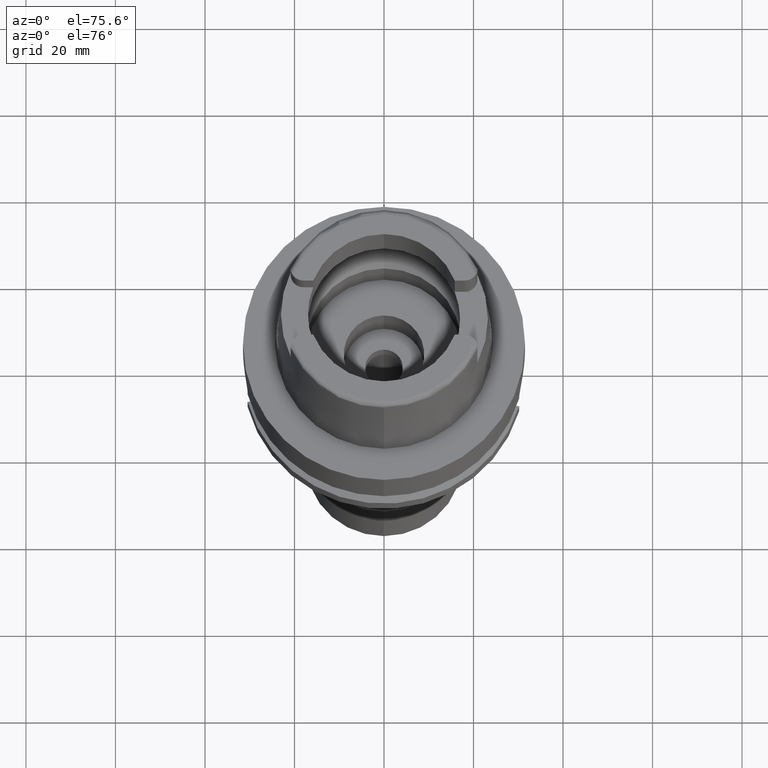
[diagram: clean part render]
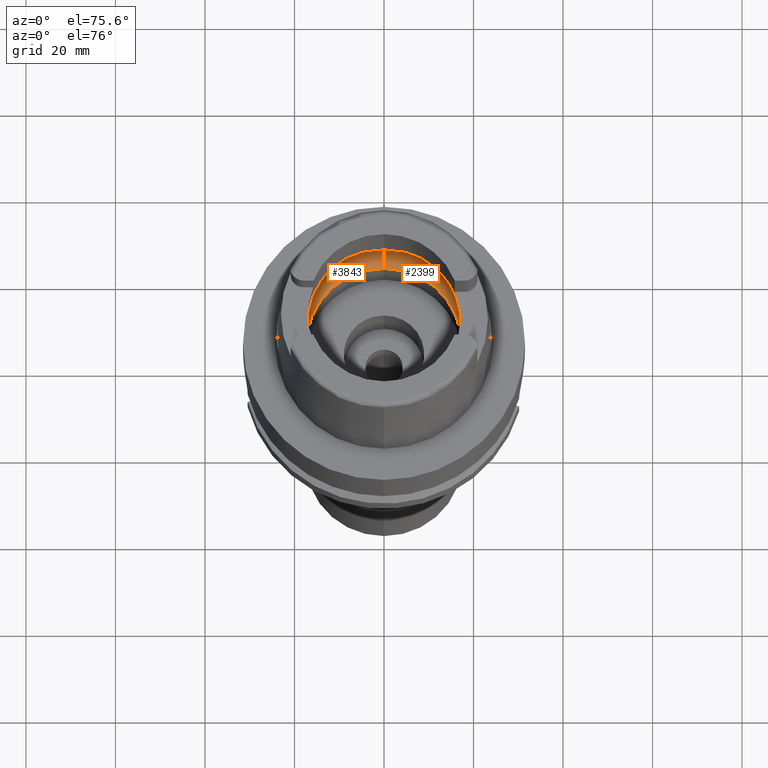
[diagram: same view with one multi-face feature highlighted, each face labeled with its STEP entity id]
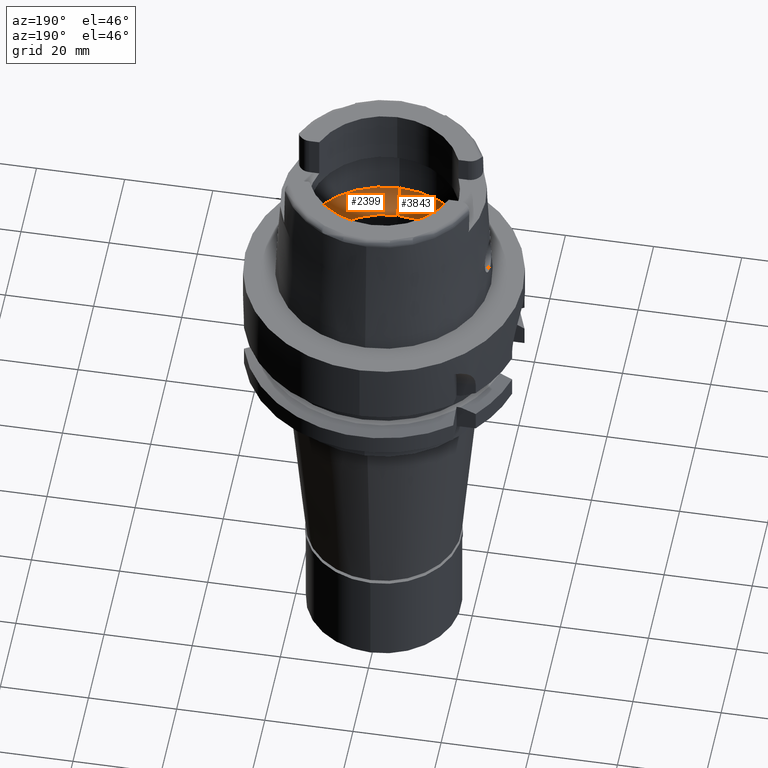
[diagram: same view with one multi-face feature highlighted, each face labeled with its STEP entity id]
A machine part, auxiliary view. The highlighted faces form ONE feature: a constant-radius fillet chain: 2 tangent blend faces with common blend radius 8 mm. The faces share edges in the B-rep.
A second angle (auxiliary view) of the same feature is appended — it is thin or edge-on in the first view.
Their STEP definitions:
[1] entity #3843 (Torus):
#64 = DIRECTION ( 'NONE',  ( 0.0000000000000000000, 0.0000000000000000000, 1.000000000000000000 ) ) ;
#124 = DIRECTION ( 'NONE',  ( 0.0000000000000000000, 1.000000000000000000, 0.0000000000000000000 ) ) ;
#132 = AXIS2_PLACEMENT_3D ( 'NONE', #3434, #5071, #2989 ) ;
#161 = CARTESIAN_POINT ( 'NONE',  ( 0.0000000000000000000, 20.00000000000000000, 6.186348233825000875 ) ) ;
#205 = DIRECTION ( 'NONE',  ( 0.0000000000000000000, 1.000000000000000000, 0.0000000000000000000 ) ) ;
#244 = CARTESIAN_POINT ( 'NONE',  ( -19.92547007504345302, -1.335031240339097369, 5.495683724100088874 ) ) ;
#247 = ORIENTED_EDGE ( 'NONE', *, *, #4760, .F. ) ;
#299 = CARTESIAN_POINT ( 'NONE',  ( -19.93292508344945801, 1.081630659659294169, 5.408972087979956989 ) ) ;
#324 = CARTESIAN_POINT ( 'NONE',  ( -19.94501428475999916, 0.0000000000000000000, 5.250000000000000000 ) ) ;
#379 = CARTESIAN_POINT ( 'NONE',  ( -19.92607296192538513, 1.317057065037986030, 5.488888788417265907 ) ) ;
#411 = CIRCLE ( 'NONE', #4923, 17.25000000000000000 ) ;
#430 = AXIS2_PLACEMENT_3D ( 'NONE', #5112, #988, #2607 ) ;
#463 = EDGE_CURVE ( 'NONE', #1445, #4021, #3325, .T. ) ;
#660 = CARTESIAN_POINT ( 'NONE',  ( -19.92517785718085577, -1.343613127942956842, 5.498962406970089312 ) ) ;
#713 = CARTESIAN_POINT ( 'NONE',  ( -19.92467615132159864, -1.358120919786871328, 5.504564686247708671 ) ) ;
#748 = CARTESIAN_POINT ( 'NONE',  ( -19.94501428476000271, 0.2480002814738951344, 5.249999999999999112 ) ) ;
#776 = CARTESIAN_POINT ( 'NONE',  ( -19.88332310116147283, 2.178371483505385786, 5.921391814315846602 ) ) ;
#876 = CARTESIAN_POINT ( 'NONE',  ( -19.90654447560747542, -1.770008974173177263, 5.691881888190377659 ) ) ;
#988 = DIRECTION ( 'NONE',  ( 1.000000000000000000, 0.0000000000000000000, 0.0000000000000000000 ) ) ;
#1007 = DIRECTION ( 'NONE',  ( -1.000000000000000000, 0.0000000000000000000, 0.0000000000000000000 ) ) ;
#1057 = AXIS2_PLACEMENT_3D ( 'NONE', #4822, #1007, #2270 ) ;
#1101 = CARTESIAN_POINT ( 'NONE',  ( -19.94501428475999560, -0.4960423020627297008, 5.249999999999995559 ) ) ;
#1183 = CARTESIAN_POINT ( 'NONE',  ( -19.92705993187612989, 1.286922590644232978, 5.477696685208107930 ) ) ;
#1212 = CARTESIAN_POINT ( 'NONE',  ( -19.93096058823649130, 1.157935579649966629, 5.432577573767241041 ) ) ;
#1282 = CARTESIAN_POINT ( 'NONE',  ( -19.84575864665999845, -2.479085262491000030, 6.186348233825000875 ) ) ;
#1387 = CARTESIAN_POINT ( 'NONE',  ( 0.0000000000000000000, 0.0000000000000000000, 6.186348233825000875 ) ) ;
#1445 = VERTEX_POINT ( 'NONE', #3840 ) ;
#1537 = VERTEX_POINT ( 'NONE', #2818 ) ;
#1570 = CARTESIAN_POINT ( 'NONE',  ( -19.94340239125193293, 0.4850157974226460000, 5.274610163457148282 ) ) ;
#1596 = CARTESIAN_POINT ( 'NONE',  ( -19.90996073982917380, 1.795817278995830657, 5.670328124222732136 ) ) ;
#1649 = CARTESIAN_POINT ( 'NONE',  ( -19.92591704426989452, 1.321751840890049490, 5.490650643677390974 ) ) ;
#1802 = VERTEX_POINT ( 'NONE', #2412 ) ;
#1874 = CARTESIAN_POINT ( 'NONE',  ( -19.93856671042052398, -0.9459665778997381480, 5.348222674928019060 ) ) ;
#1999 = ORIENTED_EDGE ( 'NONE', *, *, #3637, .F. ) ;
#2098 = CARTESIAN_POINT ( 'NONE',  ( 0.0000000000000000000, -17.25000000000000000, 0.1500000000000999700 ) ) ;
#2107 = CIRCLE ( 'NONE', #430, 7.999999999999992895 ) ;
#2114 = ORIENTED_EDGE ( 'NONE', *, *, #4598, .T. ) ;
#2144 = CARTESIAN_POINT ( 'NONE',  ( -19.90056784349247820, -1.871074272730828048, 5.748194928871746434 ) ) ;
#2270 = DIRECTION ( 'NONE',  ( 0.0000000000000000000, -0.6562500000000006661, -0.7545435292281016393 ) ) ;
#2355 = CARTESIAN_POINT ( 'NONE',  ( -19.91448525756728927, -1.610510976265786987, 5.612925495665686881 ) ) ;
#2383 = CARTESIAN_POINT ( 'NONE',  ( -19.84575864665999845, 2.479085262489999941, 6.186348233825000875 ) ) ;
#2412 = CARTESIAN_POINT ( 'NONE',  ( 0.0000000000000000000, 17.25000000000000000, 0.1500000000000999700 ) ) ;
#2499 = CIRCLE ( 'NONE', #132, 20.00000000000000000 ) ;
#2598 = CARTESIAN_POINT ( 'NONE',  ( 0.0000000000000000000, -20.00000000000000000, 6.186348233825000875 ) ) ;
#2607 = DIRECTION ( 'NONE',  ( 0.0000000000000000000, 0.6562500000000006661, -0.7545435292281016393 ) ) ;
#2676 = EDGE_CURVE ( 'NONE', #3620, #1537, #2499, .T. ) ;
#2731 = CIRCLE ( 'NONE', #1057, 7.999999999999992895 ) ;
#2745 = DIRECTION ( 'NONE',  ( -0.9922879323327794543, 0.1239542631244973381, 0.0000000000000000000 ) ) ;
#2763 = EDGE_LOOP ( 'NONE', ( #4072, #3680, #1999, #2114, #3548, #4168, #247 ) ) ;
#2816 = CARTESIAN_POINT ( 'NONE',  ( -19.93655184384261858, 0.9261166967963114782, 5.364558725656097593 ) ) ;
#2818 = CARTESIAN_POINT ( 'NONE',  ( -19.84575864665999845, -2.479085262491000030, 6.186348233825000875 ) ) ;
#2872 = CARTESIAN_POINT ( 'NONE',  ( -19.92840422587602944, 1.244362650384072122, 5.462311864171463860 ) ) ;
#2971 = CARTESIAN_POINT ( 'NONE',  ( -19.86453968564131500, -2.328737885376345407, 6.053878405347992597 ) ) ;
#2989 = DIRECTION ( 'NONE',  ( 0.0000000000000000000, -1.000000000000000000, 0.0000000000000000000 ) ) ;
#3015 = CARTESIAN_POINT ( 'NONE',  ( 0.0000000000000000000, 0.0000000000000000000, 0.1500000000000999700 ) ) ;
#3074 = DIRECTION ( 'NONE',  ( 0.0000000000000000000, 0.0000000000000000000, 1.000000000000000000 ) ) ;
#3325 = B_SPLINE_CURVE_WITH_KNOTS ( 'NONE', 3,
 ( #324, #748, #1570, #3679, #2816, #299, #1212, #2872, #1183, #4563, #379, #1649, #1596, #776, #2383 ),
 .UNSPECIFIED., .F., .F.,
 ( 4, 2, 2, 1, 1, 1, 2, 2, 4 ),
 ( 0.0000000000000000000, 0.2499999999999956146, 0.3749999999999934497, 0.4374999999999923395, 0.4687499999999917288, 0.4843749999999914513, 0.4921874999999914513, 0.4999999999999915623, 1.000000000000000000 ),
 .UNSPECIFIED. ) ;
#3419 = AXIS2_PLACEMENT_3D ( 'NONE', #3951, #3572, #2745 ) ;
#3434 = CARTESIAN_POINT ( 'NONE',  ( 0.0000000000000000000, 0.0000000000000000000, 6.186348233825000875 ) ) ;
#3548 = ORIENTED_EDGE ( 'NONE', *, *, #4201, .F. ) ;
#3559 = CARTESIAN_POINT ( 'NONE',  ( -19.94501428475999916, 0.0000000000000000000, 5.250000000000000000 ) ) ;
#3572 = DIRECTION ( 'NONE',  ( 0.0000000000000000000, 0.0000000000000000000, -1.000000000000000000 ) ) ;
#3620 = VERTEX_POINT ( 'NONE', #2598 ) ;
#3637 = EDGE_CURVE ( 'NONE', #1802, #5258, #411, .T. ) ;
#3679 = CARTESIAN_POINT ( 'NONE',  ( -19.93856671072771292, 0.8185607198028845843, 5.338678409714962214 ) ) ;
#3680 = ORIENTED_EDGE ( 'NONE', *, *, #5218, .F. ) ;
#3840 = CARTESIAN_POINT ( 'NONE',  ( -19.94501428475999916, 0.0000000000000000000, 5.250000000000000000 ) ) ;
#3843 = ADVANCED_FACE ( 'NONE', ( #4042 ), #5007, .F. ) ;
#3951 = CARTESIAN_POINT ( 'NONE',  ( 0.0000000000000000000, 0.0000000000000000000, 6.186348233825000875 ) ) ;
#4021 = VERTEX_POINT ( 'NONE', #4572 ) ;
#4024 = CARTESIAN_POINT ( 'NONE',  ( -19.92208494194046509, -1.430041077684033990, 5.533135808937241329 ) ) ;
#4042 = FACE_OUTER_BOUND ( 'NONE', #2763, .T. ) ;
#4072 = ORIENTED_EDGE ( 'NONE', *, *, #2676, .F. ) ;
#4168 = ORIENTED_EDGE ( 'NONE', *, *, #463, .F. ) ;
#4201 = EDGE_CURVE ( 'NONE', #4021, #4602, #4753, .T. ) ;
#4563 = CARTESIAN_POINT ( 'NONE',  ( -19.92646963884338263, 1.305022040076338818, 5.484397814373272340 ) ) ;
#4572 = CARTESIAN_POINT ( 'NONE',  ( -19.84575864665999845, 2.479085262489999941, 6.186348233825000875 ) ) ;
#4598 = EDGE_CURVE ( 'NONE', #1802, #4602, #2107, .T. ) ;
#4602 = VERTEX_POINT ( 'NONE', #161 ) ;
#4670 = CARTESIAN_POINT ( 'NONE',  ( -19.88058961472209774, -2.158414018199903417, 5.925204145833316893 ) ) ;
#4675 = B_SPLINE_CURVE_WITH_KNOTS ( 'NONE', 3,
 ( #1282, #2971, #4670, #2144, #876, #2355, #5254, #4024, #4910, #713, #660, #244, #1874, #1101, #3559 ),
 .UNSPECIFIED., .F., .F.,
 ( 4, 2, 2, 1, 1, 1, 2, 2, 4 ),
 ( 0.0000000000000000000, 0.2500000000000051070, 0.3750000000000077716, 0.4375000000000091038, 0.4687500000000098255, 0.4843750000000101030, 0.4921875000000099920, 0.5000000000000098810, 1.000000000000000000 ),
 .UNSPECIFIED. ) ;
#4753 = CIRCLE ( 'NONE', #3419, 20.00000000000001421 ) ;
#4760 = EDGE_CURVE ( 'NONE', #1537, #1445, #4675, .T. ) ;
#4822 = CARTESIAN_POINT ( 'NONE',  ( 0.0000000000000000000, -12.00000000000000000, 6.186348233825000875 ) ) ;
#4910 = CARTESIAN_POINT ( 'NONE',  ( -19.92391559123418787, -1.379822842001579009, 5.513022806674898746 ) ) ;
#4923 = AXIS2_PLACEMENT_3D ( 'NONE', #3015, #64, #124 ) ;
#5007 = TOROIDAL_SURFACE ( 'NONE', #5102, 12.00000000000000000, 8.000000000000000000 ) ;
#5071 = DIRECTION ( 'NONE',  ( 0.0000000000000000000, 0.0000000000000000000, -1.000000000000000000 ) ) ;
#5102 = AXIS2_PLACEMENT_3D ( 'NONE', #1387, #3074, #205 ) ;
#5112 = CARTESIAN_POINT ( 'NONE',  ( 0.0000000000000000000, 12.00000000000000000, 6.186348233825000875 ) ) ;
#5218 = EDGE_CURVE ( 'NONE', #5258, #3620, #2731, .T. ) ;
#5254 = CARTESIAN_POINT ( 'NONE',  ( -19.91819960699401193, -1.528790138807751164, 5.574827418276589341 ) ) ;
#5258 = VERTEX_POINT ( 'NONE', #2098 ) ;
[2] entity #2399 (Torus):
#136 = CARTESIAN_POINT ( 'NONE',  ( 19.92840411800285594, -1.244366584479167814, 5.462313247185328180 ) ) ;
#161 = CARTESIAN_POINT ( 'NONE',  ( 0.0000000000000000000, 20.00000000000000000, 6.186348233825000875 ) ) ;
#195 = CARTESIAN_POINT ( 'NONE',  ( 19.90654459260023401, 1.770006697072565638, 5.691880654306289422 ) ) ;
#216 = DIRECTION ( 'NONE',  ( 0.9922879323327794543, -0.1239542631244973381, 0.0000000000000000000 ) ) ;
#246 = CARTESIAN_POINT ( 'NONE',  ( 19.84575864665999845, -2.479085262491000030, 6.186348233825000875 ) ) ;
#352 = CIRCLE ( 'NONE', #623, 20.00000000000000000 ) ;
#430 = AXIS2_PLACEMENT_3D ( 'NONE', #5112, #988, #2607 ) ;
#525 = CARTESIAN_POINT ( 'NONE',  ( 19.90056795285840252, 1.871072381427654641, 5.748193827892907670 ) ) ;
#623 = AXIS2_PLACEMENT_3D ( 'NONE', #1534, #4423, #4392 ) ;
#640 = CARTESIAN_POINT ( 'NONE',  ( 19.92547020324161622, 1.335027099705274445, 5.495682146681705404 ) ) ;
#663 = CARTESIAN_POINT ( 'NONE',  ( 19.88332301270218849, -2.178372191595286722, 5.921392438207989883 ) ) ;
#741 = EDGE_CURVE ( 'NONE', #3143, #3620, #2507, .T. ) ;
#753 = CIRCLE ( 'NONE', #3829, 17.25000000000000000 ) ;
#778 = CARTESIAN_POINT ( 'NONE',  ( 0.0000000000000000000, 0.0000000000000000000, 0.1500000000000999700 ) ) ;
#802 = EDGE_CURVE ( 'NONE', #1279, #3143, #5379, .T. ) ;
#872 = DIRECTION ( 'NONE',  ( 0.0000000000000000000, 0.0000000000000000000, 1.000000000000000000 ) ) ;
#928 = VERTEX_POINT ( 'NONE', #2378 ) ;
#929 = DIRECTION ( 'NONE',  ( 0.0000000000000000000, 1.000000000000000000, 0.0000000000000000000 ) ) ;
#940 = CARTESIAN_POINT ( 'NONE',  ( 19.92517798419736508, 1.343609062691706768, 5.498960846759680443 ) ) ;
#988 = DIRECTION ( 'NONE',  ( 1.000000000000000000, 0.0000000000000000000, 0.0000000000000000000 ) ) ;
#1007 = DIRECTION ( 'NONE',  ( -1.000000000000000000, 0.0000000000000000000, 0.0000000000000000000 ) ) ;
#1020 = CARTESIAN_POINT ( 'NONE',  ( 19.90996060949646207, -1.795819319521763990, 5.670329520825307057 ) ) ;
#1057 = AXIS2_PLACEMENT_3D ( 'NONE', #4822, #1007, #2270 ) ;
#1253 = CARTESIAN_POINT ( 'NONE',  ( 0.0000000000000000000, 0.0000000000000000000, 6.186348233825000875 ) ) ;
#1279 = VERTEX_POINT ( 'NONE', #2774 ) ;
#1425 = CARTESIAN_POINT ( 'NONE',  ( 19.92705981527248937, -1.286926606873724177, 5.477698152406411225 ) ) ;
#1430 = CARTESIAN_POINT ( 'NONE',  ( 19.92391571847978327, 1.379818936262329210, 5.513021260670505796 ) ) ;
#1486 = CARTESIAN_POINT ( 'NONE',  ( 19.94340238078356720, -0.4850176595367738930, 5.274610361541468784 ) ) ;
#1487 = ORIENTED_EDGE ( 'NONE', *, *, #802, .F. ) ;
#1529 = EDGE_LOOP ( 'NONE', ( #2213, #1659, #3134, #1755, #4359, #2219, #1487 ) ) ;
#1534 = CARTESIAN_POINT ( 'NONE',  ( 0.0000000000000000000, 0.0000000000000000000, 6.186348233825000875 ) ) ;
#1659 = ORIENTED_EDGE ( 'NONE', *, *, #4834, .F. ) ;
#1679 = DIRECTION ( 'NONE',  ( 0.0000000000000000000, -1.000000000000000000, 0.0000000000000000000 ) ) ;
#1754 = EDGE_CURVE ( 'NONE', #5258, #1802, #753, .T. ) ;
#1755 = ORIENTED_EDGE ( 'NONE', *, *, #1754, .F. ) ;
#1802 = VERTEX_POINT ( 'NONE', #2412 ) ;
#1827 = B_SPLINE_CURVE_WITH_KNOTS ( 'NONE', 3,
 ( #4433, #4788, #3567, #525, #195, #4401, #5232, #5261, #1430, #2287, #940, #640, #2673, #2615, #2315 ),
 .UNSPECIFIED., .F., .F.,
 ( 4, 2, 2, 1, 1, 1, 2, 2, 4 ),
 ( 0.0000000000000000000, 0.2500000000000098810, 0.3750000000000143774, 0.4375000000000168199, 0.4687500000000177636, 0.4843750000000178746, 0.4921875000000178191, 0.5000000000000177636, 1.000000000000000000 ),
 .UNSPECIFIED. ) ;
#2098 = CARTESIAN_POINT ( 'NONE',  ( 0.0000000000000000000, -17.25000000000000000, 0.1500000000000999700 ) ) ;
#2107 = CIRCLE ( 'NONE', #430, 7.999999999999992895 ) ;
#2152 = TOROIDAL_SURFACE ( 'NONE', #2330, 12.00000000000000000, 8.000000000000000000 ) ;
#2213 = ORIENTED_EDGE ( 'NONE', *, *, #5477, .F. ) ;
#2219 = ORIENTED_EDGE ( 'NONE', *, *, #741, .F. ) ;
#2224 = CARTESIAN_POINT ( 'NONE',  ( 19.93655178888372248, -0.9261198900591437466, 5.364559530321087344 ) ) ;
#2270 = DIRECTION ( 'NONE',  ( 0.0000000000000000000, -0.6562500000000006661, -0.7545435292281016393 ) ) ;
#2287 = CARTESIAN_POINT ( 'NONE',  ( 19.92467627844355249, 1.358116918539703288, 5.504563131532022702 ) ) ;
#2310 = CARTESIAN_POINT ( 'NONE',  ( 19.94501428475999916, 0.0000000000000000000, 5.250000000000000000 ) ) ;
#2315 = CARTESIAN_POINT ( 'NONE',  ( 19.94501428475999916, 0.0000000000000000000, 5.250000000000000000 ) ) ;
#2330 = AXIS2_PLACEMENT_3D ( 'NONE', #1253, #872, #929 ) ;
#2378 = CARTESIAN_POINT ( 'NONE',  ( 19.84575864665999845, 2.479085262491000030, 6.186348233825000875 ) ) ;
#2399 = ADVANCED_FACE ( 'NONE', ( #2522 ), #2152, .F. ) ;
#2412 = CARTESIAN_POINT ( 'NONE',  ( 0.0000000000000000000, 17.25000000000000000, 0.1500000000000999700 ) ) ;
#2438 = DIRECTION ( 'NONE',  ( 0.0000000000000000000, 0.0000000000000000000, 1.000000000000000000 ) ) ;
#2507 = CIRCLE ( 'NONE', #3931, 20.00000000000001421 ) ;
#2522 = FACE_OUTER_BOUND ( 'NONE', #1529, .T. ) ;
#2598 = CARTESIAN_POINT ( 'NONE',  ( 0.0000000000000000000, -20.00000000000000000, 6.186348233825000875 ) ) ;
#2607 = DIRECTION ( 'NONE',  ( 0.0000000000000000000, 0.6562500000000006661, -0.7545435292281016393 ) ) ;
#2615 = CARTESIAN_POINT ( 'NONE',  ( 19.94501428475999916, 0.4960402853743813290, 5.250000000000000888 ) ) ;
#2673 = CARTESIAN_POINT ( 'NONE',  ( 19.93856675271270618, 0.9459631445367676639, 5.348221889603026469 ) ) ;
#2731 = CIRCLE ( 'NONE', #1057, 7.999999999999992895 ) ;
#2766 = CARTESIAN_POINT ( 'NONE',  ( 19.84575864665999845, -2.479085262491000030, 6.186348233825000875 ) ) ;
#2774 = CARTESIAN_POINT ( 'NONE',  ( 19.94501428475999916, 0.0000000000000000000, 5.250000000000000000 ) ) ;
#3085 = CARTESIAN_POINT ( 'NONE',  ( 19.93292500493674524, -1.081634238850528451, 5.408973163817647034 ) ) ;
#3114 = CARTESIAN_POINT ( 'NONE',  ( 19.92591691872320681, -1.321755966737424792, 5.490652197696729075 ) ) ;
#3134 = ORIENTED_EDGE ( 'NONE', *, *, #4598, .F. ) ;
#3143 = VERTEX_POINT ( 'NONE', #2766 ) ;
#3535 = CARTESIAN_POINT ( 'NONE',  ( 19.93856666885426776, -0.8185636124059638696, 5.338679045133562617 ) ) ;
#3567 = CARTESIAN_POINT ( 'NONE',  ( 19.88058969236887918, 2.158413152842832083, 5.925203484518751118 ) ) ;
#3620 = VERTEX_POINT ( 'NONE', #2598 ) ;
#3829 = AXIS2_PLACEMENT_3D ( 'NONE', #778, #2438, #1679 ) ;
#3931 = AXIS2_PLACEMENT_3D ( 'NONE', #5197, #4864, #216 ) ;
#4026 = CARTESIAN_POINT ( 'NONE',  ( 19.94501428476000271, -0.2480012822880987844, 5.249999999999999112 ) ) ;
#4359 = ORIENTED_EDGE ( 'NONE', *, *, #5218, .T. ) ;
#4392 = DIRECTION ( 'NONE',  ( 0.0000000000000000000, 1.000000000000000000, 0.0000000000000000000 ) ) ;
#4401 = CARTESIAN_POINT ( 'NONE',  ( 19.91448538158095616, 1.610508053762637504, 5.612924102263966653 ) ) ;
#4423 = DIRECTION ( 'NONE',  ( 0.0000000000000000000, 0.0000000000000000000, -1.000000000000000000 ) ) ;
#4433 = CARTESIAN_POINT ( 'NONE',  ( 19.84575864665999845, 2.479085262491000030, 6.186348233825000875 ) ) ;
#4598 = EDGE_CURVE ( 'NONE', #1802, #4602, #2107, .T. ) ;
#4602 = VERTEX_POINT ( 'NONE', #161 ) ;
#4783 = CARTESIAN_POINT ( 'NONE',  ( 19.92646951840612246, -1.305026090026948804, 5.484399317726082579 ) ) ;
#4788 = CARTESIAN_POINT ( 'NONE',  ( 19.86453973035713005, 2.328737527431126608, 6.053878089965426312 ) ) ;
#4822 = CARTESIAN_POINT ( 'NONE',  ( 0.0000000000000000000, -12.00000000000000000, 6.186348233825000875 ) ) ;
#4834 = EDGE_CURVE ( 'NONE', #4602, #928, #352, .T. ) ;
#4864 = DIRECTION ( 'NONE',  ( 0.0000000000000000000, 0.0000000000000000000, -1.000000000000000000 ) ) ;
#5112 = CARTESIAN_POINT ( 'NONE',  ( 0.0000000000000000000, 12.00000000000000000, 6.186348233825000875 ) ) ;
#5197 = CARTESIAN_POINT ( 'NONE',  ( 0.0000000000000000000, 0.0000000000000000000, 6.186348233825000875 ) ) ;
#5218 = EDGE_CURVE ( 'NONE', #5258, #3620, #2731, .T. ) ;
#5227 = CARTESIAN_POINT ( 'NONE',  ( 19.93096049696546856, -1.157939335591919860, 5.432578789541300246 ) ) ;
#5232 = CARTESIAN_POINT ( 'NONE',  ( 19.91819973341328875, 1.528786876979157716, 5.574825955112756581 ) ) ;
#5258 = VERTEX_POINT ( 'NONE', #2098 ) ;
#5261 = CARTESIAN_POINT ( 'NONE',  ( 19.92208506923287104, 1.430037391292800830, 5.533134286468000873 ) ) ;
#5287 = CARTESIAN_POINT ( 'NONE',  ( 19.92607283891191727, -1.317061137141596561, 5.488890315884850324 ) ) ;
#5379 = B_SPLINE_CURVE_WITH_KNOTS ( 'NONE', 3,
 ( #2310, #4026, #1486, #3535, #2224, #3085, #5227, #136, #1425, #4783, #5287, #3114, #1020, #663, #246 ),
 .UNSPECIFIED., .F., .F.,
 ( 4, 2, 2, 1, 1, 1, 2, 2, 4 ),
 ( 0.0000000000000000000, 0.2499999999999987788, 0.3749999999999982792, 0.4374999999999980571, 0.4687499999999978906, 0.4843749999999975020, 0.4921874999999975575, 0.4999999999999975575, 1.000000000000000000 ),
 .UNSPECIFIED. ) ;
#5477 = EDGE_CURVE ( 'NONE', #928, #1279, #1827, .T. ) ;